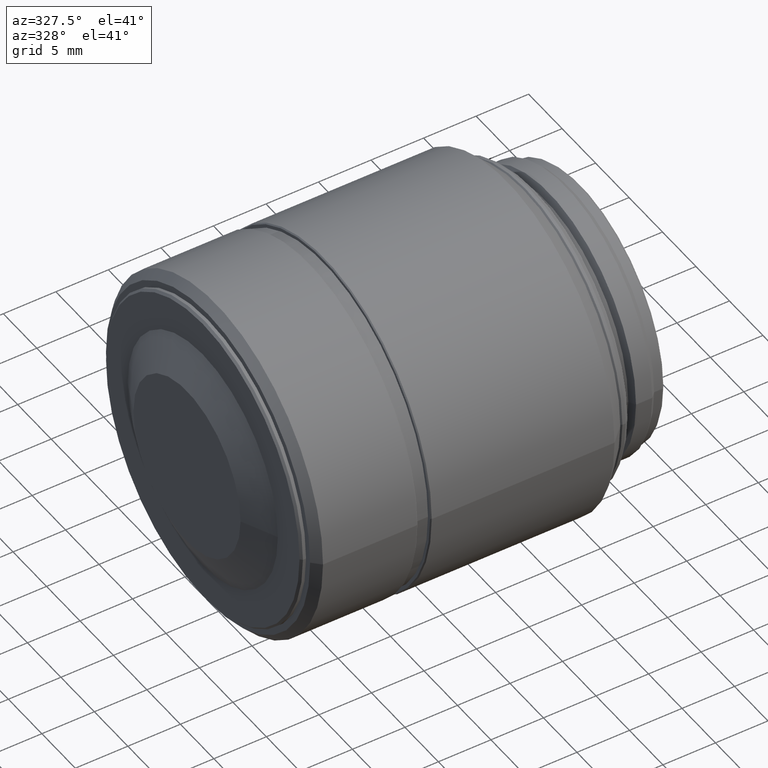
[diagram: clean part render]
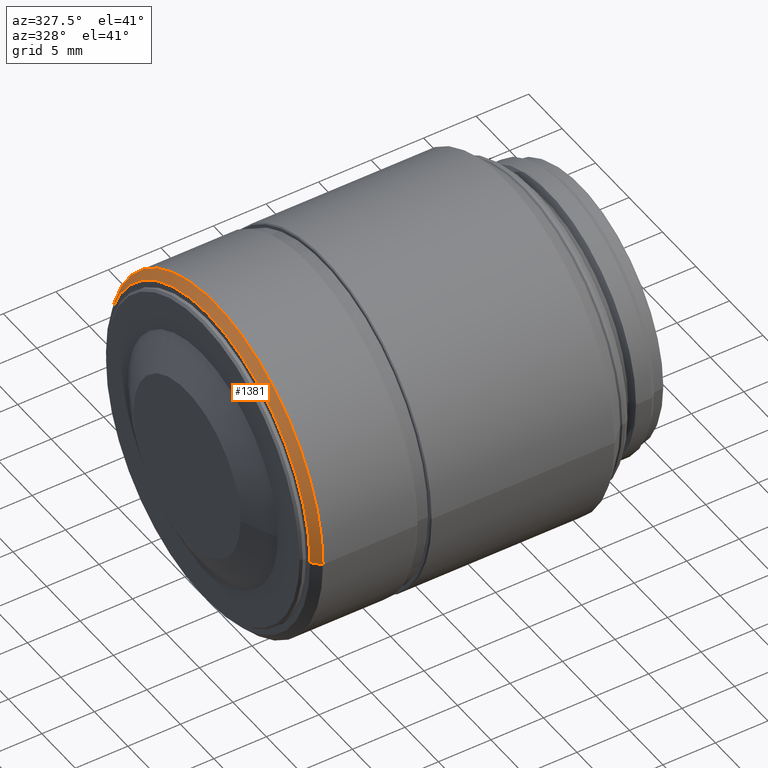
[diagram: same view with one face highlighted and labeled with its STEP entity id]
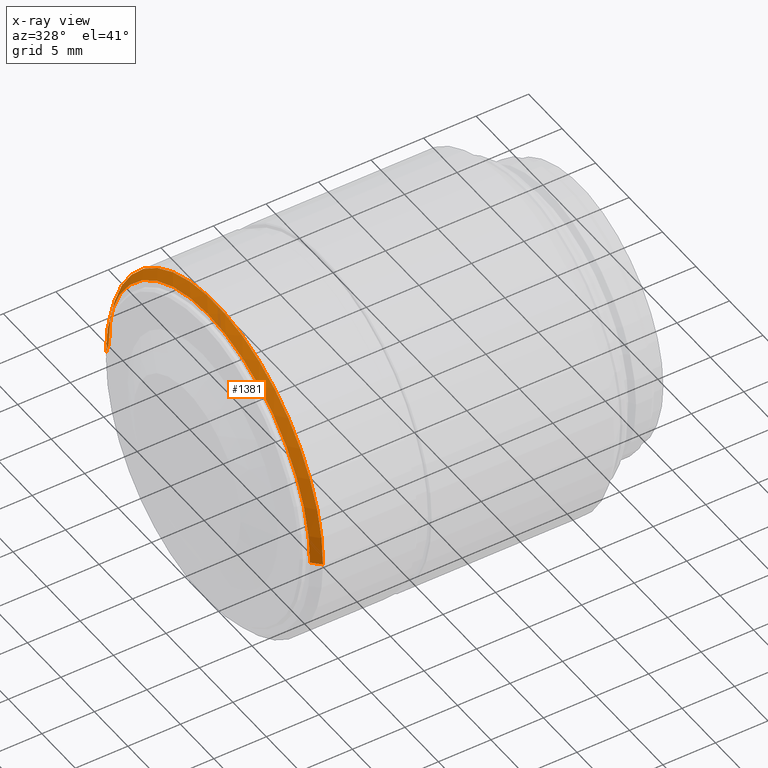
[diagram: x-ray of the same camera — body ghosted, the highlighted face saturated]
A machine part, auxiliary view. The second image highlights one B-rep face of the part: STEP entity #1381.
The next image is the same camera in x-ray: the body ghosted, the highlighted face saturated — about 0% of this face is hidden behind the body in this view.
In plain terms, the highlighted conical surface has half-angle 45 deg.
Its self-contained STEP definition (entity closure, byte-faithful):
#75 = VERTEX_POINT ( 'NONE', #327 ) ;
#147 = EDGE_LOOP ( 'NONE', ( #660, #534, #1106, #294 ) ) ;
#209 = FACE_OUTER_BOUND ( 'NONE', #147, .T. ) ;
#248 = AXIS2_PLACEMENT_3D ( 'NONE', #718, #1403, #481 ) ;
#294 = ORIENTED_EDGE ( 'NONE', *, *, #1427, .T. ) ;
#308 = EDGE_CURVE ( 'NONE', #1383, #927, #655, .T. ) ;
#327 = CARTESIAN_POINT ( 'NONE',  ( -7.000000000000000000, -15.25000000000000000, 0.000000000000000000 ) ) ;
#369 = LINE ( 'NONE', #494, #623 ) ;
#370 = AXIS2_PLACEMENT_3D ( 'NONE', #853, #787, #1480 ) ;
#481 = DIRECTION ( 'NONE',  ( 0.000000000000000000, 1.000000000000000000, 0.000000000000000000 ) ) ;
#494 = CARTESIAN_POINT ( 'NONE',  ( -6.250000000000000000, -16.00000000000000000, 0.000000000000000000 ) ) ;
#514 = CARTESIAN_POINT ( 'NONE',  ( -6.250000000000000000, 16.00000000000000000, -1.959434878635769865E-15 ) ) ;
#523 = CIRCLE ( 'NONE', #1440, 15.25000000000000000 ) ;
#534 = ORIENTED_EDGE ( 'NONE', *, *, #1291, .F. ) ;
#623 = VECTOR ( 'NONE', #976, 1000.000000000000114 ) ;
#655 = LINE ( 'NONE', #514, #1415 ) ;
#660 = ORIENTED_EDGE ( 'NONE', *, *, #712, .T. ) ;
#712 = EDGE_CURVE ( 'NONE', #75, #800, #369, .T. ) ;
#718 = CARTESIAN_POINT ( 'NONE',  ( -6.250000000000000000, 0.000000000000000000, 0.000000000000000000 ) ) ;
#727 = CARTESIAN_POINT ( 'NONE',  ( -6.250000000000000000, -16.00000000000000000, 0.000000000000000000 ) ) ;
#787 = DIRECTION ( 'NONE',  ( 1.000000000000000000, 0.000000000000000000, 0.000000000000000000 ) ) ;
#800 = VERTEX_POINT ( 'NONE', #727 ) ;
#853 = CARTESIAN_POINT ( 'NONE',  ( -6.250000000000000000, 0.000000000000000000, 0.000000000000000000 ) ) ;
#867 = DIRECTION ( 'NONE',  ( 0.7071067811865474617, 0.7071067811865474617, -8.659560562354911904E-17 ) ) ;
#873 = DIRECTION ( 'NONE',  ( 0.000000000000000000, 1.000000000000000000, 0.000000000000000000 ) ) ;
#910 = DIRECTION ( 'NONE',  ( 1.000000000000000000, 0.000000000000000000, 0.000000000000000000 ) ) ;
#911 = CIRCLE ( 'NONE', #248, 16.00000000000000000 ) ;
#927 = VERTEX_POINT ( 'NONE', #1112 ) ;
#976 = DIRECTION ( 'NONE',  ( 0.7071067811865474617, -0.7071067811865474617, 0.000000000000000000 ) ) ;
#1029 = CARTESIAN_POINT ( 'NONE',  ( -7.000000000000000000, 0.000000000000000000, 0.000000000000000000 ) ) ;
#1106 = ORIENTED_EDGE ( 'NONE', *, *, #308, .F. ) ;
#1112 = CARTESIAN_POINT ( 'NONE',  ( -6.250000000000000000, 16.00000000000000000, -1.959434878635769865E-15 ) ) ;
#1213 = CARTESIAN_POINT ( 'NONE',  ( -7.000000000000000000, 15.25000000000000000, -1.867586368699709826E-15 ) ) ;
#1291 = EDGE_CURVE ( 'NONE', #927, #800, #911, .T. ) ;
#1381 = ADVANCED_FACE ( 'NONE', ( #209 ), #1417, .T. ) ;
#1383 = VERTEX_POINT ( 'NONE', #1213 ) ;
#1403 = DIRECTION ( 'NONE',  ( 1.000000000000000000, 0.000000000000000000, 0.000000000000000000 ) ) ;
#1415 = VECTOR ( 'NONE', #867, 1000.000000000000114 ) ;
#1417 = CONICAL_SURFACE ( 'NONE', #370, 16.00000000000000000, 0.7853981633974476129 ) ;
#1427 = EDGE_CURVE ( 'NONE', #1383, #75, #523, .T. ) ;
#1440 = AXIS2_PLACEMENT_3D ( 'NONE', #1029, #910, #873 ) ;
#1480 = DIRECTION ( 'NONE',  ( 0.000000000000000000, -1.000000000000000000, 0.000000000000000000 ) ) ;